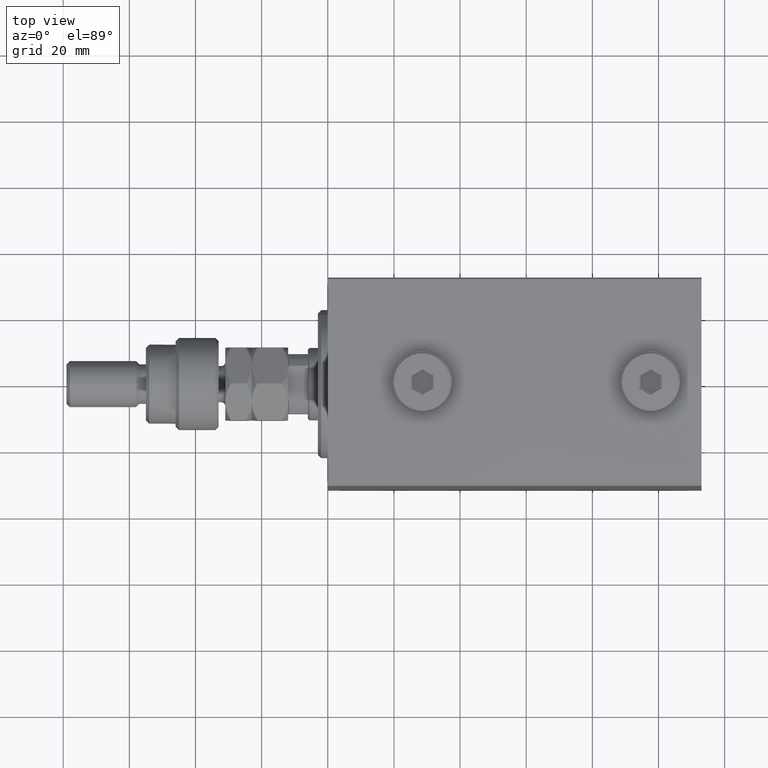
[diagram: clean part render]
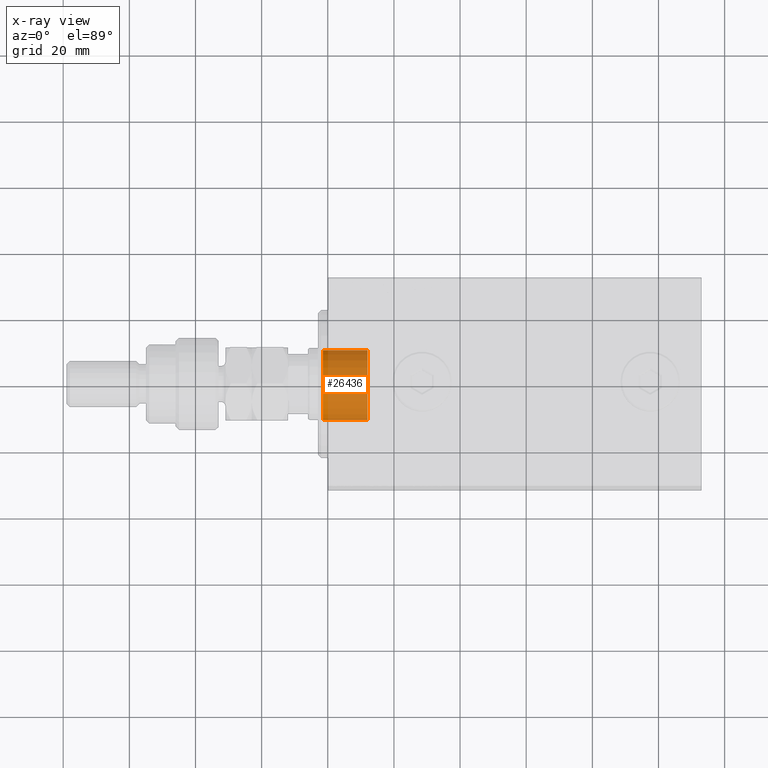
[diagram: x-ray — body ghosted, one internal face saturated and labeled with its STEP entity id]
A machine part, top view, then the same camera in x-ray: the body is ghosted and one INTERNAL B-rep face — a face not visible from any outside direction — is saturated and labeled: STEP entity #26436.
In plain terms, the highlighted cylindrical surface (edge-blend (fillet) strip) has radius 11 mm, axis along (-1, 0, 0).
Its self-contained STEP definition (entity closure, byte-faithful):
#5 = AXIS2_PLACEMENT_3D ( 'NONE', #36423, #47603, #21833 ) ;
#1932 = DIRECTION ( 'NONE',  ( 1.000000000000000000, -0.000000000000000000, -0.000000000000000000 ) ) ;
#3185 = EDGE_CURVE ( 'NONE', #18829, #43504, #35677, .T. ) ;
#3813 = CARTESIAN_POINT ( 'NONE',  ( 1.499999999999999556, 1.347111479062088405E-15, 11.00000000000000000 ) ) ;
#4114 = EDGE_CURVE ( 'NONE', #15772, #43504, #5319, .T. ) ;
#5319 = LINE ( 'NONE', #42958, #34945 ) ;
#5968 = EDGE_CURVE ( 'NONE', #40587, #15772, #21001, .T. ) ;
#6989 = DIRECTION ( 'NONE',  ( 0.000000000000000000, 0.000000000000000000, -1.000000000000000000 ) ) ;
#13763 = EDGE_LOOP ( 'NONE', ( #33171, #16497, #26360, #28642 ) ) ;
#14754 = CARTESIAN_POINT ( 'NONE',  ( -12.00000000000000000, 0.000000000000000000, 0.000000000000000000 ) ) ;
#15589 = AXIS2_PLACEMENT_3D ( 'NONE', #23573, #38394, #43433 ) ;
#15772 = VERTEX_POINT ( 'NONE', #40832 ) ;
#16497 = ORIENTED_EDGE ( 'NONE', *, *, #20369, .T. ) ;
#18829 = VERTEX_POINT ( 'NONE', #3813 ) ;
#20369 = EDGE_CURVE ( 'NONE', #40587, #18829, #41742, .T. ) ;
#21001 = CIRCLE ( 'NONE', #15589, 11.00000000000000000 ) ;
#21326 = VECTOR ( 'NONE', #23269, 1000.000000000000000 ) ;
#21776 = DIRECTION ( 'NONE',  ( 1.000000000000000000, -0.000000000000000000, -0.000000000000000000 ) ) ;
#21833 = DIRECTION ( 'NONE',  ( 0.000000000000000000, 0.000000000000000000, -1.000000000000000000 ) ) ;
#22019 = FACE_OUTER_BOUND ( 'NONE', #13763, .T. ) ;
#23269 = DIRECTION ( 'NONE',  ( 1.000000000000000000, -0.000000000000000000, -0.000000000000000000 ) ) ;
#23573 = CARTESIAN_POINT ( 'NONE',  ( -12.00000000000000000, 0.000000000000000000, 0.000000000000000000 ) ) ;
#26360 = ORIENTED_EDGE ( 'NONE', *, *, #3185, .T. ) ;
#26436 = ADVANCED_FACE ( 'NONE', ( #22019 ), #40736, .F. ) ;
#26866 = AXIS2_PLACEMENT_3D ( 'NONE', #14754, #21776, #6989 ) ;
#28642 = ORIENTED_EDGE ( 'NONE', *, *, #4114, .F. ) ;
#28795 = CARTESIAN_POINT ( 'NONE',  ( 1.499999999999999556, 0.000000000000000000, -11.00000000000000000 ) ) ;
#33171 = ORIENTED_EDGE ( 'NONE', *, *, #5968, .F. ) ;
#34693 = CARTESIAN_POINT ( 'NONE',  ( -12.00000000000000000, 1.347111479062088405E-15, 11.00000000000000000 ) ) ;
#34945 = VECTOR ( 'NONE', #1932, 1000.000000000000000 ) ;
#35136 = CARTESIAN_POINT ( 'NONE',  ( -12.00000000000000000, 1.347111479062088405E-15, 11.00000000000000000 ) ) ;
#35677 = CIRCLE ( 'NONE', #5, 11.00000000000000000 ) ;
#36423 = CARTESIAN_POINT ( 'NONE',  ( 1.499999999999999556, 0.000000000000000000, 0.000000000000000000 ) ) ;
#38394 = DIRECTION ( 'NONE',  ( 1.000000000000000000, 0.000000000000000000, 0.000000000000000000 ) ) ;
#40587 = VERTEX_POINT ( 'NONE', #35136 ) ;
#40736 = CYLINDRICAL_SURFACE ( 'NONE', #26866, 11.00000000000000000 ) ;
#40832 = CARTESIAN_POINT ( 'NONE',  ( -12.00000000000000000, 0.000000000000000000, -11.00000000000000000 ) ) ;
#41742 = LINE ( 'NONE', #34693, #21326 ) ;
#42958 = CARTESIAN_POINT ( 'NONE',  ( -12.00000000000000000, 0.000000000000000000, -11.00000000000000000 ) ) ;
#43433 = DIRECTION ( 'NONE',  ( 0.000000000000000000, 0.000000000000000000, -1.000000000000000000 ) ) ;
#43504 = VERTEX_POINT ( 'NONE', #28795 ) ;
#47603 = DIRECTION ( 'NONE',  ( 1.000000000000000000, 0.000000000000000000, 0.000000000000000000 ) ) ;